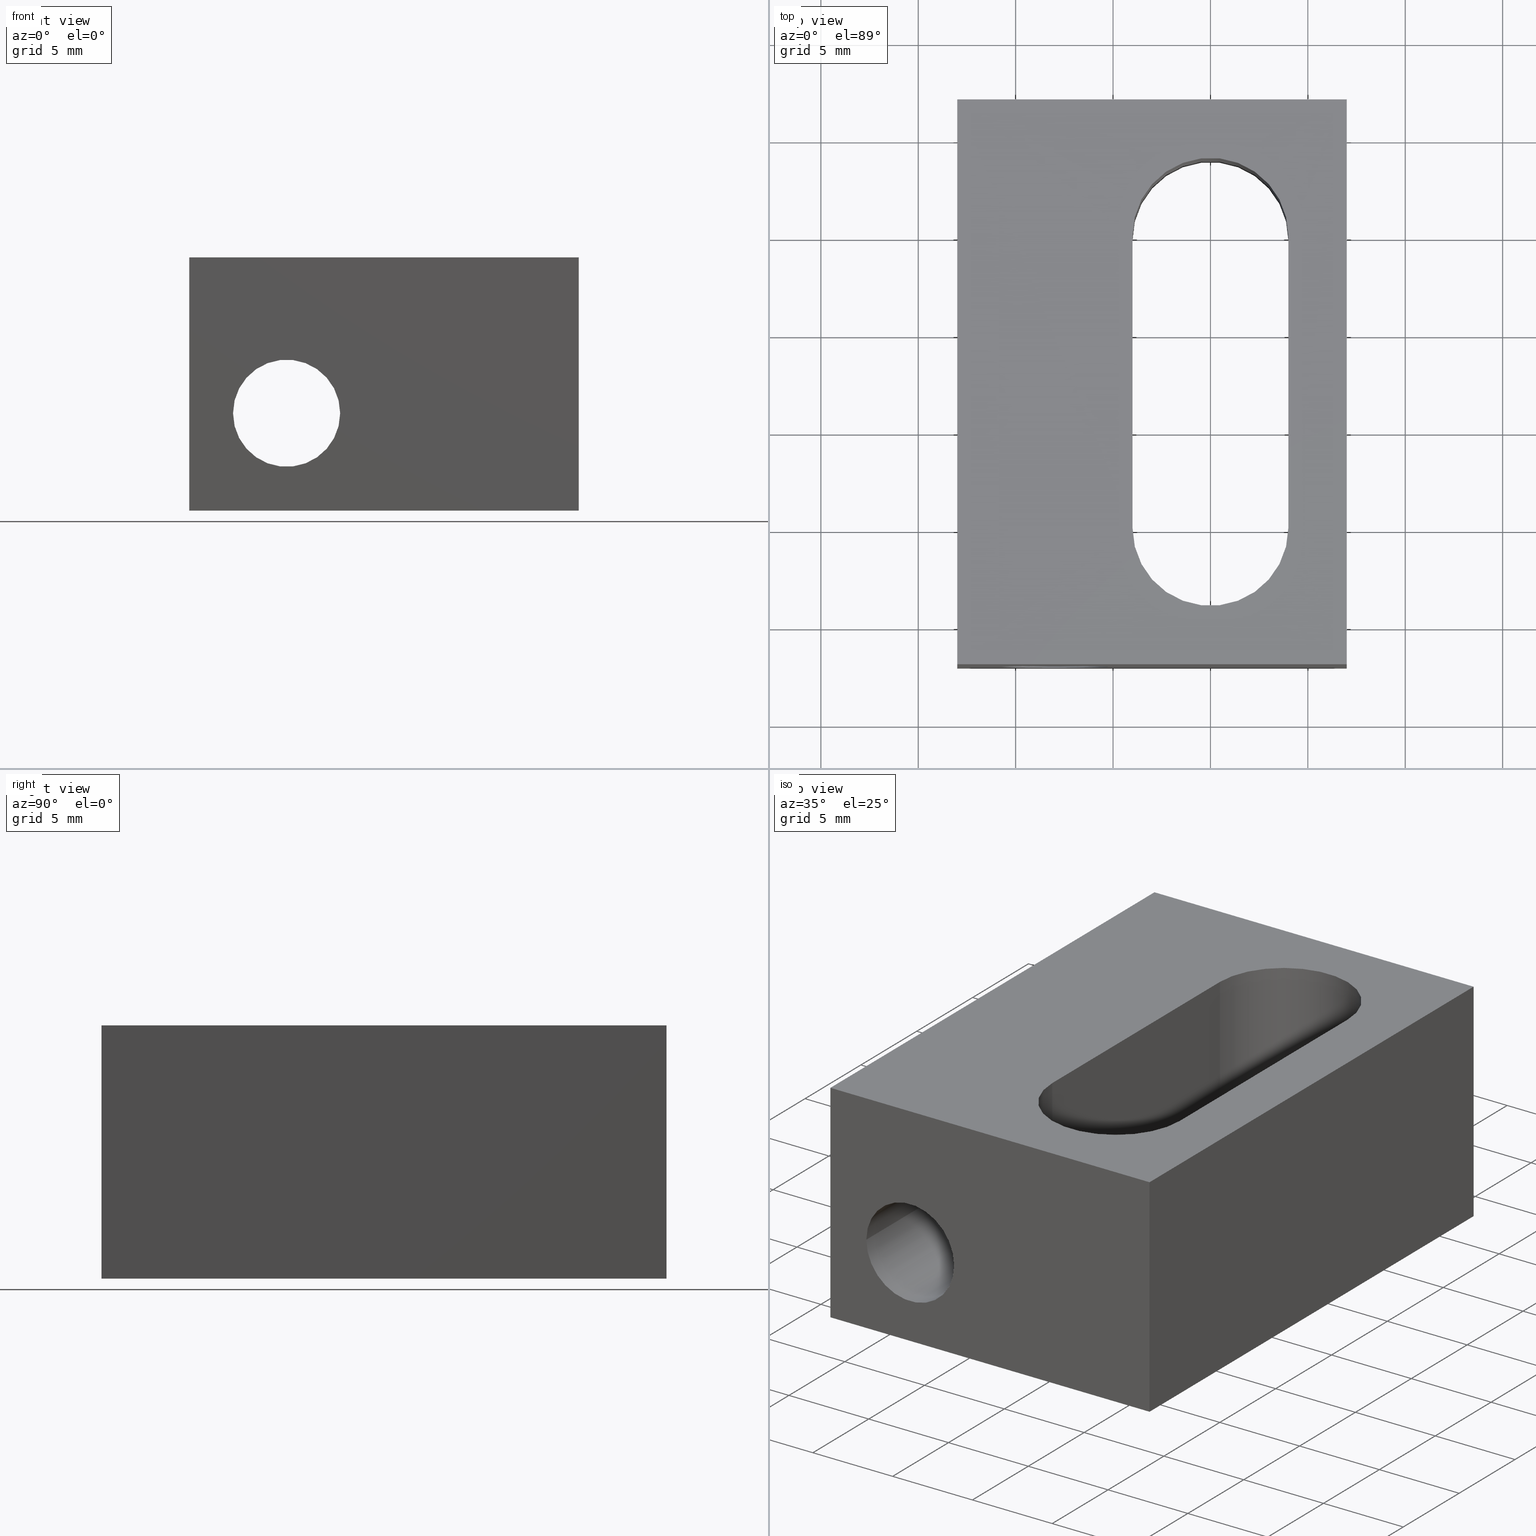
[diagram: canonical four-view strip — front | top / right | iso, engineering-drawing reading convention]
A machine part, canonical four-view strip (front | top / right | iso — engineering-drawing reading convention). The complete STEP part file that produces these views, byte-faithful:
ISO-10303-21;
HEADER;
/* Generated by software containing ST-Developer
 * from STEP Tools, Inc. (www.steptools.com) 
 */

FILE_DESCRIPTION(
/* description */ ('FERMO REG. PER BLOCC. PANNELLI'),
/* implementation_level */ '2;1');

FILE_NAME(
/* name */ 
'Q:\\Catalogo\\2_Accessori Dierre\\Per Download Web e catalogo cartace
o\\CATALOGO ACCESSORI PER RIPARI\\PAGINA 74\\DBLXX0000201.stp',
/* time_stamp */ '2018-04-18T09:28:03+02:00',
/* author */ ('fzagni'),
/* organization */ (''),
/* preprocessor_version */ 'ST-DEVELOPER v16.1',
/* originating_system */ 'Autodesk Inventor 2016',
/* authorisation */ '');

FILE_SCHEMA (('AUTOMOTIVE_DESIGN { 1 0 10303 214 3 1 1 }'));
ENDSEC;

DATA;
#10=MECHANICAL_DESIGN_GEOMETRIC_PRESENTATION_REPRESENTATION('',(#13),#345);
#11=SHAPE_REPRESENTATION_RELATIONSHIP('SRR','None',#354,#12);
#12=ADVANCED_BREP_SHAPE_REPRESENTATION('',(#14),#344);
#13=STYLED_ITEM('',(#363),#14);
#14=MANIFOLD_SOLID_BREP('None',#211);
#15=CYLINDRICAL_SURFACE('',#225,3.999999999984);
#16=CYLINDRICAL_SURFACE('',#227,3.999999999984);
#17=CYLINDRICAL_SURFACE('',#229,2.75);
#18=FACE_BOUND('',#41,.T.);
#19=FACE_BOUND('',#44,.T.);
#20=FACE_BOUND('',#47,.T.);
#21=FACE_BOUND('',#49,.T.);
#22=FACE_BOUND('',#55,.T.);
#23=CIRCLE('',#214,2.75);
#24=CIRCLE('',#217,2.75);
#25=CIRCLE('',#220,3.999999999984);
#26=CIRCLE('',#221,3.999999999984);
#27=CIRCLE('',#223,3.999999999984);
#28=CIRCLE('',#224,3.999999999984);
#29=FACE_OUTER_BOUND('',#40,.T.);
#30=FACE_OUTER_BOUND('',#42,.T.);
#31=FACE_OUTER_BOUND('',#43,.T.);
#32=FACE_OUTER_BOUND('',#45,.T.);
#33=FACE_OUTER_BOUND('',#46,.T.);
#34=FACE_OUTER_BOUND('',#48,.T.);
#35=FACE_OUTER_BOUND('',#50,.T.);
#36=FACE_OUTER_BOUND('',#51,.T.);
#37=FACE_OUTER_BOUND('',#52,.T.);
#38=FACE_OUTER_BOUND('',#53,.T.);
#39=FACE_OUTER_BOUND('',#54,.T.);
#40=EDGE_LOOP('',(#140,#141,#142,#143));
#41=EDGE_LOOP('',(#144));
#42=EDGE_LOOP('',(#145,#146,#147,#148));
#43=EDGE_LOOP('',(#149,#150,#151,#152));
#44=EDGE_LOOP('',(#153));
#45=EDGE_LOOP('',(#154,#155,#156,#157));
#46=EDGE_LOOP('',(#158,#159,#160,#161));
#47=EDGE_LOOP('',(#162,#163,#164,#165));
#48=EDGE_LOOP('',(#166,#167,#168,#169));
#49=EDGE_LOOP('',(#170,#171,#172,#173));
#50=EDGE_LOOP('',(#174,#175,#176,#177));
#51=EDGE_LOOP('',(#178,#179,#180,#181));
#52=EDGE_LOOP('',(#182,#183,#184,#185));
#53=EDGE_LOOP('',(#186,#187,#188,#189));
#54=EDGE_LOOP('',(#190));
#55=EDGE_LOOP('',(#191));
#56=LINE('',#290,#76);
#57=LINE('',#292,#77);
#58=LINE('',#294,#78);
#59=LINE('',#295,#79);
#60=LINE('',#300,#80);
#61=LINE('',#302,#81);
#62=LINE('',#303,#82);
#63=LINE('',#306,#83);
#64=LINE('',#308,#84);
#65=LINE('',#309,#85);
#66=LINE('',#313,#86);
#67=LINE('',#314,#87);
#68=LINE('',#320,#88);
#69=LINE('',#323,#89);
#70=LINE('',#327,#90);
#71=LINE('',#331,#91);
#72=LINE('',#334,#92);
#73=LINE('',#335,#93);
#74=LINE('',#337,#94);
#75=LINE('',#339,#95);
#76=VECTOR('',#234,13.);
#77=VECTOR('',#235,19.99999999992);
#78=VECTOR('',#236,13.);
#79=VECTOR('',#237,19.99999999992);
#80=VECTOR('',#242,28.999999999884);
#81=VECTOR('',#243,13.);
#82=VECTOR('',#244,28.999999999884);
#83=VECTOR('',#247,19.99999999992);
#84=VECTOR('',#248,13.);
#85=VECTOR('',#249,19.99999999992);
#86=VECTOR('',#254,28.999999999884);
#87=VECTOR('',#255,28.999999999884);
#88=VECTOR('',#260,14.99999999994);
#89=VECTOR('',#263,14.99999999994);
#90=VECTOR('',#266,14.99999999994);
#91=VECTOR('',#269,14.99999999994);
#92=VECTOR('',#274,13.);
#93=VECTOR('',#275,13.);
#94=VECTOR('',#278,13.);
#95=VECTOR('',#281,13.);
#96=VERTEX_POINT('',#288);
#97=VERTEX_POINT('',#289);
#98=VERTEX_POINT('',#291);
#99=VERTEX_POINT('',#293);
#100=VERTEX_POINT('',#296);
#101=VERTEX_POINT('',#299);
#102=VERTEX_POINT('',#301);
#103=VERTEX_POINT('',#305);
#104=VERTEX_POINT('',#307);
#105=VERTEX_POINT('',#310);
#106=VERTEX_POINT('',#316);
#107=VERTEX_POINT('',#317);
#108=VERTEX_POINT('',#319);
#109=VERTEX_POINT('',#321);
#110=VERTEX_POINT('',#325);
#111=VERTEX_POINT('',#326);
#112=VERTEX_POINT('',#328);
#113=VERTEX_POINT('',#330);
#114=EDGE_CURVE('',#96,#97,#56,.T.);
#115=EDGE_CURVE('',#97,#98,#57,.T.);
#116=EDGE_CURVE('',#99,#98,#58,.T.);
#117=EDGE_CURVE('',#96,#99,#59,.T.);
#118=EDGE_CURVE('',#100,#100,#23,.T.);
#119=EDGE_CURVE('',#98,#101,#60,.T.);
#120=EDGE_CURVE('',#102,#101,#61,.T.);
#121=EDGE_CURVE('',#99,#102,#62,.T.);
#122=EDGE_CURVE('',#101,#103,#63,.T.);
#123=EDGE_CURVE('',#104,#103,#64,.T.);
#124=EDGE_CURVE('',#102,#104,#65,.T.);
#125=EDGE_CURVE('',#105,#105,#24,.T.);
#126=EDGE_CURVE('',#103,#97,#66,.T.);
#127=EDGE_CURVE('',#104,#96,#67,.T.);
#128=EDGE_CURVE('',#106,#107,#25,.T.);
#129=EDGE_CURVE('',#108,#106,#68,.T.);
#130=EDGE_CURVE('',#109,#108,#26,.T.);
#131=EDGE_CURVE('',#107,#109,#69,.T.);
#132=EDGE_CURVE('',#110,#111,#70,.T.);
#133=EDGE_CURVE('',#111,#112,#27,.T.);
#134=EDGE_CURVE('',#112,#113,#71,.T.);
#135=EDGE_CURVE('',#113,#110,#28,.T.);
#136=EDGE_CURVE('',#107,#110,#72,.T.);
#137=EDGE_CURVE('',#106,#113,#73,.T.);
#138=EDGE_CURVE('',#109,#111,#74,.T.);
#139=EDGE_CURVE('',#108,#112,#75,.T.);
#140=ORIENTED_EDGE('',*,*,#114,.T.);
#141=ORIENTED_EDGE('',*,*,#115,.T.);
#142=ORIENTED_EDGE('',*,*,#116,.F.);
#143=ORIENTED_EDGE('',*,*,#117,.F.);
#144=ORIENTED_EDGE('',*,*,#118,.F.);
#145=ORIENTED_EDGE('',*,*,#116,.T.);
#146=ORIENTED_EDGE('',*,*,#119,.T.);
#147=ORIENTED_EDGE('',*,*,#120,.F.);
#148=ORIENTED_EDGE('',*,*,#121,.F.);
#149=ORIENTED_EDGE('',*,*,#120,.T.);
#150=ORIENTED_EDGE('',*,*,#122,.T.);
#151=ORIENTED_EDGE('',*,*,#123,.F.);
#152=ORIENTED_EDGE('',*,*,#124,.F.);
#153=ORIENTED_EDGE('',*,*,#125,.F.);
#154=ORIENTED_EDGE('',*,*,#123,.T.);
#155=ORIENTED_EDGE('',*,*,#126,.T.);
#156=ORIENTED_EDGE('',*,*,#114,.F.);
#157=ORIENTED_EDGE('',*,*,#127,.F.);
#158=ORIENTED_EDGE('',*,*,#117,.T.);
#159=ORIENTED_EDGE('',*,*,#121,.T.);
#160=ORIENTED_EDGE('',*,*,#124,.T.);
#161=ORIENTED_EDGE('',*,*,#127,.T.);
#162=ORIENTED_EDGE('',*,*,#128,.F.);
#163=ORIENTED_EDGE('',*,*,#129,.F.);
#164=ORIENTED_EDGE('',*,*,#130,.F.);
#165=ORIENTED_EDGE('',*,*,#131,.F.);
#166=ORIENTED_EDGE('',*,*,#126,.F.);
#167=ORIENTED_EDGE('',*,*,#122,.F.);
#168=ORIENTED_EDGE('',*,*,#119,.F.);
#169=ORIENTED_EDGE('',*,*,#115,.F.);
#170=ORIENTED_EDGE('',*,*,#132,.T.);
#171=ORIENTED_EDGE('',*,*,#133,.T.);
#172=ORIENTED_EDGE('',*,*,#134,.T.);
#173=ORIENTED_EDGE('',*,*,#135,.T.);
#174=ORIENTED_EDGE('',*,*,#136,.T.);
#175=ORIENTED_EDGE('',*,*,#135,.F.);
#176=ORIENTED_EDGE('',*,*,#137,.F.);
#177=ORIENTED_EDGE('',*,*,#128,.T.);
#178=ORIENTED_EDGE('',*,*,#136,.F.);
#179=ORIENTED_EDGE('',*,*,#131,.T.);
#180=ORIENTED_EDGE('',*,*,#138,.T.);
#181=ORIENTED_EDGE('',*,*,#132,.F.);
#182=ORIENTED_EDGE('',*,*,#138,.F.);
#183=ORIENTED_EDGE('',*,*,#130,.T.);
#184=ORIENTED_EDGE('',*,*,#139,.T.);
#185=ORIENTED_EDGE('',*,*,#133,.F.);
#186=ORIENTED_EDGE('',*,*,#134,.F.);
#187=ORIENTED_EDGE('',*,*,#139,.F.);
#188=ORIENTED_EDGE('',*,*,#129,.T.);
#189=ORIENTED_EDGE('',*,*,#137,.T.);
#190=ORIENTED_EDGE('',*,*,#125,.T.);
#191=ORIENTED_EDGE('',*,*,#118,.T.);
#192=PLANE('',#213);
#193=PLANE('',#215);
#194=PLANE('',#216);
#195=PLANE('',#218);
#196=PLANE('',#219);
#197=PLANE('',#222);
#198=PLANE('',#226);
#199=PLANE('',#228);
#200=ADVANCED_FACE('',(#29,#18),#192,.F.);
#201=ADVANCED_FACE('',(#30),#193,.F.);
#202=ADVANCED_FACE('',(#31,#19),#194,.F.);
#203=ADVANCED_FACE('',(#32),#195,.F.);
#204=ADVANCED_FACE('',(#33,#20),#196,.T.);
#205=ADVANCED_FACE('',(#34,#21),#197,.F.);
#206=ADVANCED_FACE('',(#35),#15,.F.);
#207=ADVANCED_FACE('',(#36),#198,.T.);
#208=ADVANCED_FACE('',(#37),#16,.F.);
#209=ADVANCED_FACE('',(#38),#199,.T.);
#210=ADVANCED_FACE('',(#39,#22),#17,.F.);
#211=CLOSED_SHELL('',(#200,#201,#202,#203,#204,#205,#206,#207,#208,#209,
#210));
#212=AXIS2_PLACEMENT_3D('placement',#286,#230,#231);
#213=AXIS2_PLACEMENT_3D('',#287,#232,#233);
#214=AXIS2_PLACEMENT_3D('',#297,#238,#239);
#215=AXIS2_PLACEMENT_3D('',#298,#240,#241);
#216=AXIS2_PLACEMENT_3D('',#304,#245,#246);
#217=AXIS2_PLACEMENT_3D('',#311,#250,#251);
#218=AXIS2_PLACEMENT_3D('',#312,#252,#253);
#219=AXIS2_PLACEMENT_3D('',#315,#256,#257);
#220=AXIS2_PLACEMENT_3D('',#318,#258,#259);
#221=AXIS2_PLACEMENT_3D('',#322,#261,#262);
#222=AXIS2_PLACEMENT_3D('',#324,#264,#265);
#223=AXIS2_PLACEMENT_3D('',#329,#267,#268);
#224=AXIS2_PLACEMENT_3D('',#332,#270,#271);
#225=AXIS2_PLACEMENT_3D('',#333,#272,#273);
#226=AXIS2_PLACEMENT_3D('',#336,#276,#277);
#227=AXIS2_PLACEMENT_3D('',#338,#279,#280);
#228=AXIS2_PLACEMENT_3D('',#340,#282,#283);
#229=AXIS2_PLACEMENT_3D('',#341,#284,#285);
#230=DIRECTION('axis',(0.,0.,1.));
#231=DIRECTION('refdir',(1.,0.,0.));
#232=DIRECTION('center_axis',(0.,1.,0.));
#233=DIRECTION('ref_axis',(0.,0.,1.));
#234=DIRECTION('',(0.,0.,-1.));
#235=DIRECTION('',(1.,0.,0.));
#236=DIRECTION('',(0.,0.,-1.));
#237=DIRECTION('',(1.,0.,0.));
#238=DIRECTION('center_axis',(0.,-1.,0.));
#239=DIRECTION('ref_axis',(1.,0.,0.));
#240=DIRECTION('center_axis',(-1.,0.,0.));
#241=DIRECTION('ref_axis',(0.,0.,1.));
#242=DIRECTION('',(0.,1.,0.));
#243=DIRECTION('',(0.,0.,-1.));
#244=DIRECTION('',(0.,1.,0.));
#245=DIRECTION('center_axis',(0.,-1.,0.));
#246=DIRECTION('ref_axis',(0.,0.,-1.));
#247=DIRECTION('',(-1.,0.,0.));
#248=DIRECTION('',(0.,0.,-1.));
#249=DIRECTION('',(-1.,0.,0.));
#250=DIRECTION('center_axis',(0.,1.,0.));
#251=DIRECTION('ref_axis',(1.,0.,0.));
#252=DIRECTION('center_axis',(1.,0.,0.));
#253=DIRECTION('ref_axis',(0.,0.,-1.));
#254=DIRECTION('',(0.,-1.,0.));
#255=DIRECTION('',(0.,-1.,0.));
#256=DIRECTION('center_axis',(0.,0.,1.));
#257=DIRECTION('ref_axis',(1.,0.,0.));
#258=DIRECTION('center_axis',(0.,0.,1.));
#259=DIRECTION('ref_axis',(1.,0.,0.));
#260=DIRECTION('',(0.,1.,0.));
#261=DIRECTION('center_axis',(0.,0.,1.));
#262=DIRECTION('ref_axis',(1.,0.,0.));
#263=DIRECTION('',(0.,-1.,0.));
#264=DIRECTION('center_axis',(0.,0.,1.));
#265=DIRECTION('ref_axis',(1.,0.,0.));
#266=DIRECTION('',(0.,-1.,0.));
#267=DIRECTION('center_axis',(0.,0.,1.));
#268=DIRECTION('ref_axis',(1.,0.,0.));
#269=DIRECTION('',(0.,1.,0.));
#270=DIRECTION('center_axis',(0.,0.,1.));
#271=DIRECTION('ref_axis',(1.,0.,0.));
#272=DIRECTION('center_axis',(0.,0.,1.));
#273=DIRECTION('ref_axis',(1.,0.,0.));
#274=DIRECTION('',(0.,0.,-1.));
#275=DIRECTION('',(0.,0.,-1.));
#276=DIRECTION('center_axis',(1.,0.,0.));
#277=DIRECTION('ref_axis',(0.,0.,-1.));
#278=DIRECTION('',(0.,0.,-1.));
#279=DIRECTION('center_axis',(0.,0.,1.));
#280=DIRECTION('ref_axis',(-1.,0.,0.));
#281=DIRECTION('',(0.,0.,-1.));
#282=DIRECTION('center_axis',(-1.,0.,0.));
#283=DIRECTION('ref_axis',(0.,0.,1.));
#284=DIRECTION('center_axis',(0.,-1.,0.));
#285=DIRECTION('ref_axis',(1.,0.,0.));
#286=CARTESIAN_POINT('',(0.,0.,0.));
#287=CARTESIAN_POINT('Origin',(-12.9999999999479,-6.99999999997226,13.));
#288=CARTESIAN_POINT('',(-12.9999999999479,-6.99999999997226,13.));
#289=CARTESIAN_POINT('',(-12.9999999999479,-6.99999999997226,0.));
#290=CARTESIAN_POINT('',(-12.9999999999479,-6.99999999997226,13.));
#291=CARTESIAN_POINT('',(6.99999999997203,-6.99999999997226,0.));
#292=CARTESIAN_POINT('',(-12.9999999999479,-6.99999999997226,0.));
#293=CARTESIAN_POINT('',(6.99999999997203,-6.99999999997226,13.));
#294=CARTESIAN_POINT('',(6.99999999997203,-6.99999999997226,13.));
#295=CARTESIAN_POINT('',(-12.9999999999479,-6.99999999997226,13.));
#296=CARTESIAN_POINT('',(-10.7499999999479,-6.99999999997226,5.));
#297=CARTESIAN_POINT('Origin',(-7.99999999994793,-6.99999999997226,5.));
#298=CARTESIAN_POINT('Origin',(6.99999999997203,-6.99999999997226,13.));
#299=CARTESIAN_POINT('',(6.99999999997203,21.9999999999118,0.));
#300=CARTESIAN_POINT('',(6.99999999997203,-6.99999999997226,0.));
#301=CARTESIAN_POINT('',(6.99999999997203,21.9999999999118,13.));
#302=CARTESIAN_POINT('',(6.99999999997203,21.9999999999118,13.));
#303=CARTESIAN_POINT('',(6.99999999997203,-6.99999999997226,13.));
#304=CARTESIAN_POINT('Origin',(6.99999999997203,21.9999999999118,13.));
#305=CARTESIAN_POINT('',(-12.9999999999479,21.9999999999118,0.));
#306=CARTESIAN_POINT('',(6.99999999997203,21.9999999999118,0.));
#307=CARTESIAN_POINT('',(-12.9999999999479,21.9999999999118,13.));
#308=CARTESIAN_POINT('',(-12.9999999999479,21.9999999999118,13.));
#309=CARTESIAN_POINT('',(6.99999999997203,21.9999999999118,13.));
#310=CARTESIAN_POINT('',(-10.7499999999479,21.9999999999118,5.));
#311=CARTESIAN_POINT('Origin',(-7.99999999994793,21.9999999999118,5.));
#312=CARTESIAN_POINT('Origin',(-12.9999999999479,21.9999999999118,13.));
#313=CARTESIAN_POINT('',(-12.9999999999479,21.9999999999118,0.));
#314=CARTESIAN_POINT('',(-12.9999999999479,21.9999999999118,13.));
#315=CARTESIAN_POINT('Origin',(-15.0000047343156,-9.90000473426517,13.));
#316=CARTESIAN_POINT('',(3.99999999998409,14.99999999994,13.));
#317=CARTESIAN_POINT('',(-3.99999999998409,14.99999999994,13.));
#318=CARTESIAN_POINT('Origin',(0.,14.99999999994,13.));
#319=CARTESIAN_POINT('',(3.99999999998386,0.,13.));
#320=CARTESIAN_POINT('',(3.99999999998386,0.,13.));
#321=CARTESIAN_POINT('',(-3.99999999998409,0.,13.));
#322=CARTESIAN_POINT('Origin',(0.,0.,13.));
#323=CARTESIAN_POINT('',(-3.99999999998409,14.99999999994,13.));
#324=CARTESIAN_POINT('Origin',(-15.0000047343156,-9.90000473426517,0.));
#325=CARTESIAN_POINT('',(-3.99999999998409,14.99999999994,0.));
#326=CARTESIAN_POINT('',(-3.99999999998409,0.,0.));
#327=CARTESIAN_POINT('',(-3.99999999998409,14.99999999994,0.));
#328=CARTESIAN_POINT('',(3.99999999998386,0.,0.));
#329=CARTESIAN_POINT('Origin',(0.,0.,0.));
#330=CARTESIAN_POINT('',(3.99999999998409,14.99999999994,0.));
#331=CARTESIAN_POINT('',(3.99999999998386,0.,0.));
#332=CARTESIAN_POINT('Origin',(0.,14.99999999994,0.));
#333=CARTESIAN_POINT('Origin',(0.,14.99999999994,13.));
#334=CARTESIAN_POINT('',(-3.99999999998409,14.99999999994,13.));
#335=CARTESIAN_POINT('',(3.99999999998409,14.99999999994,13.));
#336=CARTESIAN_POINT('Origin',(-3.99999999998409,14.99999999994,13.));
#337=CARTESIAN_POINT('',(-3.99999999998409,0.,13.));
#338=CARTESIAN_POINT('Origin',(0.,0.,13.));
#339=CARTESIAN_POINT('',(3.99999999998386,0.,13.));
#340=CARTESIAN_POINT('Origin',(3.99999999998386,0.,13.));
#341=CARTESIAN_POINT('Origin',(-7.99999999994793,-6.99999999997226,5.));
#342=UNCERTAINTY_MEASURE_WITH_UNIT(LENGTH_MEASURE(0.01),#346,
'DISTANCE_ACCURACY_VALUE',
'Maximum model space distance between geometric entities at asserted c
onnectivities');
#343=UNCERTAINTY_MEASURE_WITH_UNIT(LENGTH_MEASURE(1.E-6),#346,
'DISTANCE_ACCURACY_VALUE',
'Maximum model space distance between geometric entities at asserted c
onnectivities');
#344=(
GEOMETRIC_REPRESENTATION_CONTEXT(3)
GLOBAL_UNCERTAINTY_ASSIGNED_CONTEXT((#342))
GLOBAL_UNIT_ASSIGNED_CONTEXT((#346,#349,#347))
REPRESENTATION_CONTEXT('','3D')
);
#345=(
GEOMETRIC_REPRESENTATION_CONTEXT(3)
GLOBAL_UNCERTAINTY_ASSIGNED_CONTEXT((#343))
GLOBAL_UNIT_ASSIGNED_CONTEXT((#346,#349,#347))
REPRESENTATION_CONTEXT('','3D')
);
#346=(
LENGTH_UNIT()
NAMED_UNIT(*)
SI_UNIT(.MILLI.,.METRE.)
);
#347=(
NAMED_UNIT(*)
SI_UNIT($,.STERADIAN.)
SOLID_ANGLE_UNIT()
);
#348=DIMENSIONAL_EXPONENTS(0.,0.,0.,0.,0.,0.,0.);
#349=(
CONVERSION_BASED_UNIT('degree',#351)
NAMED_UNIT(#348)
PLANE_ANGLE_UNIT()
);
#350=(
NAMED_UNIT(*)
PLANE_ANGLE_UNIT()
SI_UNIT($,.RADIAN.)
);
#351=PLANE_ANGLE_MEASURE_WITH_UNIT(PLANE_ANGLE_MEASURE(0.01745329252),#350);
#352=SHAPE_DEFINITION_REPRESENTATION(#353,#354);
#353=PRODUCT_DEFINITION_SHAPE('',$,#356);
#354=SHAPE_REPRESENTATION('',(#212),#344);
#355=PRODUCT_DEFINITION_CONTEXT('part definition',#360,'design');
#356=PRODUCT_DEFINITION('PROAC032-0','PROAC032-0',#357,#355);
#357=PRODUCT_DEFINITION_FORMATION('','A',#362);
#358=PRODUCT_RELATED_PRODUCT_CATEGORY('PROAC032-0','PROAC032-0',(#362));
#359=APPLICATION_PROTOCOL_DEFINITION('international standard',
'automotive_design',2009,#360);
#360=APPLICATION_CONTEXT(
'Core Data for Automotive Mechanical Design Process');
#361=PRODUCT_CONTEXT('part definition',#360,'mechanical');
#362=PRODUCT('PROAC032-0','PROAC032-0',$,(#361));
#363=PRESENTATION_STYLE_ASSIGNMENT((#364));
#364=SURFACE_STYLE_USAGE(.BOTH.,#365);
#365=SURFACE_SIDE_STYLE('',(#366));
#366=SURFACE_STYLE_FILL_AREA(#367);
#367=FILL_AREA_STYLE('',(#368));
#368=FILL_AREA_STYLE_COLOUR('',#369);
#369=COLOUR_RGB('',0.752941176470588,0.752941176470588,0.752941176470588);
ENDSEC;
END-ISO-10303-21;
